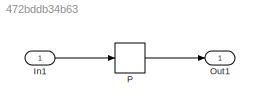
MODEL slx_472bddb34b63
KIND model
CONFIG AbsTol = auto
CONFIG EnableMultiTasking = off
CONFIG FixedStep = auto
CONFIG MaxStep = auto
CONFIG MinStep = auto
CONFIG RelTol = 1e-3
CONFIG SampleTimeConstraint = Unconstrained
CONFIG Solver = FixedStepDiscrete
CONFIG SolverName = FixedStepDiscrete
CONFIG StartTime = 0.0
CONFIG StopTime = 10.0
BLOCK [Inport] In1
  IconDisplay = Port number
  OutDataTypeStr = single
  PortDimensions = 5
BLOCK [Outport] Out1
  IconDisplay = Port number
BLOCK [Lookup_n-D] P
  BreakpointsForDimension1 = [18.3406760017917;76.6189017046576]
  BreakpointsForDimension1DataTypeStr = uint8
  BreakpointsForDimension2 = [37.1958908356242;64.7767006829746;69.135855861244;71.2602771471879;77.4736085132664]
  BreakpointsForDimension2DataTypeStr = uint8
  BreakpointsForDimension3 = [5.28944789174268;31.9763063360814;51.7373146317499]
  BreakpointsForDimension3DataTypeStr = uint8
  BreakpointsForDimension4 = [8.55605869233592;36.3927059302225]
  BreakpointsForDimension4DataTypeStr = uint8
  BreakpointsForDimension5 = [13.2452136507062;16.2740605259869;36.6203862100675]
  BreakpointsForDimension5DataTypeStr = uint8
  ExtrapMethod = Clip
  FractionDataTypeStr = single
  IntermediateResultsDataTypeStr = uint16
  InternalRulePriority = Speed
  NumberOfTableDimensions = 5
  OutDataTypeStr = uint32
  Ports = [1, 1]
  RndMeth = Convergent
  SaturateOnIntegerOverflow = on
  Table = reshape(repmat([4 5 6 7 8;16 19 20 21 22;10 18 23 24 25],6,2),[2,5,3,2,3])
  TableDataTypeStr = Inherit: Inherit from 'Table data'
  UseOneInputPortForAllInputData = on
LINE In1:1 -> P:1
LINE P:1 -> Out1:1
